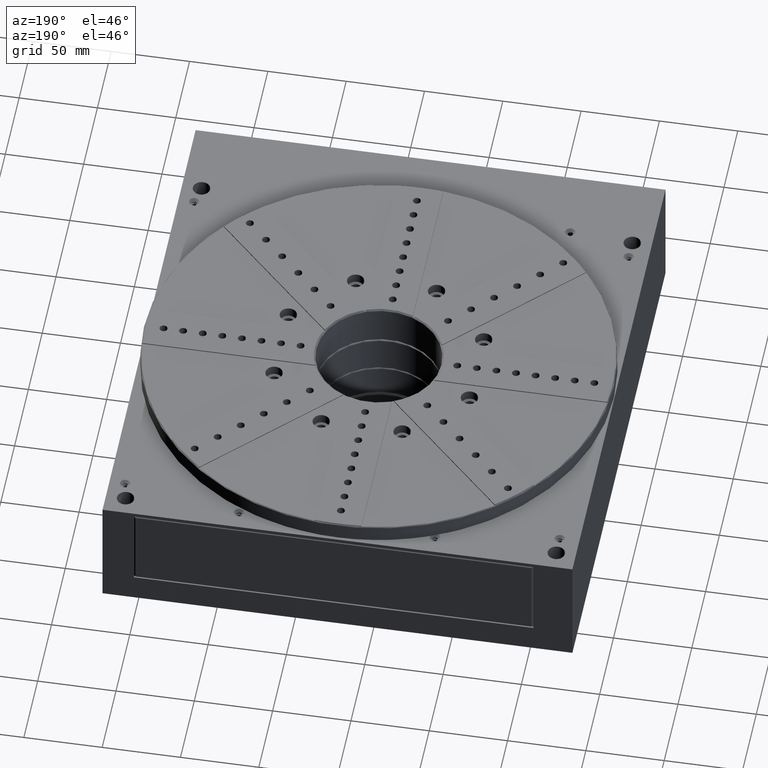
[diagram: clean part render]
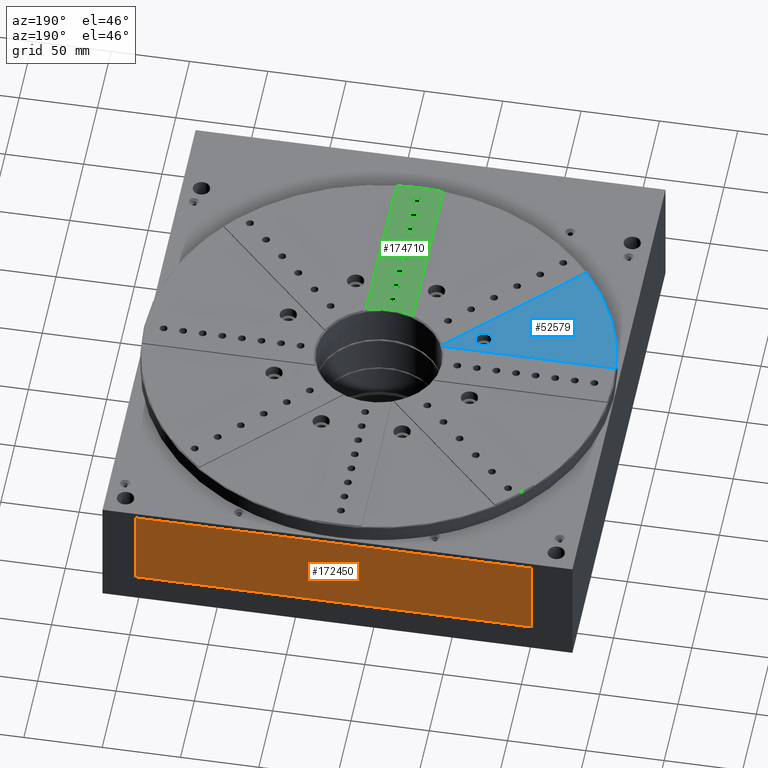
[diagram: same view with three faces highlighted in distinct colors, each labeled with its STEP entity id]
A machine part, auxiliary view with three faces highlighted in distinct colors.
Their STEP definitions:

[orange] entity #172450 — the highlighted planar face has unit normal (0, -1, 0).
#2256 = DIRECTION ( 'NONE',  ( 0.000000000000000000, 0.000000000000000000, 1.000000000000000000 ) ) ;
#4609 = CARTESIAN_POINT ( 'NONE',  ( 52.00181511733440232, 173.8558278231579948, 311.5000000000000000 ) ) ;
#8335 = VERTEX_POINT ( 'NONE', #66558 ) ;
#9319 = EDGE_LOOP ( 'NONE', ( #126367, #148507, #88373, #144078 ) ) ;
#9815 = CARTESIAN_POINT ( 'NONE',  ( 51.00181511733439521, 173.8558278231579948, 364.5000000000000000 ) ) ;
#12931 = CARTESIAN_POINT ( 'NONE',  ( 51.00181511733439521, 173.8558278231579948, 365.5000000000000000 ) ) ;
#15899 = VECTOR ( 'NONE', #149742, 1000.000000000000000 ) ;
#26726 = EDGE_CURVE ( 'NONE', #8335, #140305, #145521, .T. ) ;
#28691 = CARTESIAN_POINT ( 'NONE',  ( 52.00181511733440232, 173.8558278231579948, 364.5000000000000000 ) ) ;
#37724 = VERTEX_POINT ( 'NONE', #140795 ) ;
#37756 = VERTEX_POINT ( 'NONE', #9815 ) ;
#41208 = DIRECTION ( 'NONE',  ( 0.000000000000000000, 0.000000000000000000, -1.000000000000000000 ) ) ;
#46235 = PLANE ( 'NONE',  #80398 ) ;
#51621 = EDGE_CURVE ( 'NONE', #37756, #37724, #83630, .T. ) ;
#66558 = CARTESIAN_POINT ( 'NONE',  ( -201.9981848826655266, 173.8558278231579948, 311.5000000000000000 ) ) ;
#74535 = FACE_OUTER_BOUND ( 'NONE', #9319, .T. ) ;
#80398 = AXIS2_PLACEMENT_3D ( 'NONE', #132016, #117890, #104678 ) ;
#83630 = LINE ( 'NONE', #12931, #91315 ) ;
#87105 = CARTESIAN_POINT ( 'NONE',  ( -201.9981848826655266, 173.8558278231579948, 365.5000000000000000 ) ) ;
#88373 = ORIENTED_EDGE ( 'NONE', *, *, #160866, .T. ) ;
#91315 = VECTOR ( 'NONE', #41208, 1000.000000000000000 ) ;
#104678 = DIRECTION ( 'NONE',  ( 0.000000000000000000, 0.000000000000000000, -1.000000000000000000 ) ) ;
#108008 = VECTOR ( 'NONE', #2256, 1000.000000000000000 ) ;
#111752 = EDGE_CURVE ( 'NONE', #140305, #37756, #145534, .T. ) ;
#115371 = VECTOR ( 'NONE', #171964, 1000.000000000000000 ) ;
#117890 = DIRECTION ( 'NONE',  ( 1.224510688924803862E-16, -1.000000000000000000, 0.000000000000000000 ) ) ;
#126367 = ORIENTED_EDGE ( 'NONE', *, *, #111752, .T. ) ;
#132016 = CARTESIAN_POINT ( 'NONE',  ( 52.00181511733440232, 173.8558278231579948, 365.5000000000000000 ) ) ;
#136489 = LINE ( 'NONE', #4609, #15899 ) ;
#140305 = VERTEX_POINT ( 'NONE', #145107 ) ;
#140795 = CARTESIAN_POINT ( 'NONE',  ( 51.00181511733439521, 173.8558278231579948, 311.5000000000000000 ) ) ;
#144078 = ORIENTED_EDGE ( 'NONE', *, *, #26726, .T. ) ;
#145107 = CARTESIAN_POINT ( 'NONE',  ( -201.9981848826655266, 173.8558278231579948, 364.5000000000000000 ) ) ;
#145521 = LINE ( 'NONE', #87105, #108008 ) ;
#145534 = LINE ( 'NONE', #28691, #115371 ) ;
#148507 = ORIENTED_EDGE ( 'NONE', *, *, #51621, .T. ) ;
#149742 = DIRECTION ( 'NONE',  ( -1.000000000000000000, -1.224510688924803862E-16, 0.000000000000000000 ) ) ;
#160866 = EDGE_CURVE ( 'NONE', #37724, #8335, #136489, .T. ) ;
#171964 = DIRECTION ( 'NONE',  ( 1.000000000000000000, 1.224510688924803862E-16, 0.000000000000000000 ) ) ;
#172450 = ADVANCED_FACE ( 'NONE', ( #74535 ), #46235, .F. ) ;

[blue] entity #52579 — the highlighted planar face has unit normal (0, 0, 1).
#2129 = AXIS2_PLACEMENT_3D ( 'NONE', #32926, #90427, #18788 ) ;
#2835 = CARTESIAN_POINT ( 'NONE',  ( -115.2059849009554000, 7.861162898137220800, 381.0000000000000000 ) ) ;
#4015 = AXIS2_PLACEMENT_3D ( 'NONE', #5071, #33374, #5993 ) ;
#5071 = CARTESIAN_POINT ( 'NONE',  ( -77.99816140670421305, 23.85578295678970306, 381.0000000000000000 ) ) ;
#5993 = DIRECTION ( 'NONE',  ( 1.000000000000000000, 0.000000000000000000, 0.000000000000000000 ) ) ;
#7482 = EDGE_CURVE ( 'NONE', #57197, #56204, #153704, .T. ) ;
#18788 = DIRECTION ( 'NONE',  ( 1.000000000000000000, 0.000000000000000000, 0.000000000000000000 ) ) ;
#32926 = CARTESIAN_POINT ( 'NONE',  ( -77.99816140670421305, 23.85578295678970306, 381.0000000000000000 ) ) ;
#33374 = DIRECTION ( 'NONE',  ( 0.000000000000000000, 0.000000000000000000, 1.000000000000000000 ) ) ;
#35582 = AXIS2_PLACEMENT_3D ( 'NONE', #115285, #58720, #184159 ) ;
#36219 = CARTESIAN_POINT ( 'NONE',  ( -277.4348681584954761, 8.855782956789679972, 381.0000000000000000 ) ) ;
#44237 = CIRCLE ( 'NONE', #2129, 149.5000000000000000 ) ;
#44429 = DIRECTION ( 'NONE',  ( 1.000000000000000000, 0.000000000000000000, 0.000000000000000000 ) ) ;
#45298 = CARTESIAN_POINT ( 'NONE',  ( -115.6179700186576014, 8.855782956789701288, 381.0000000000000000 ) ) ;
#45937 = CARTESIAN_POINT ( 'NONE',  ( -193.7837771909989897, -70.71662939190609620, 381.0000000000000000 ) ) ;
#51457 = CIRCLE ( 'NONE', #114706, 40.50000000000000000 ) ;
#52579 = ADVANCED_FACE ( 'NONE', ( #173851, #121004 ), #93644, .T. ) ;
#55525 = ORIENTED_EDGE ( 'NONE', *, *, #83002, .F. ) ;
#56204 = VERTEX_POINT ( 'NONE', #45937 ) ;
#57197 = VERTEX_POINT ( 'NONE', #2835 ) ;
#58720 = DIRECTION ( 'NONE',  ( 0.000000000000000000, 0.000000000000000000, -1.000000000000000000 ) ) ;
#59662 = CIRCLE ( 'NONE', #35582, 5.500000000000005329 ) ;
#61828 = DIRECTION ( 'NONE',  ( 0.000000000000000000, 0.000000000000000000, 1.000000000000000000 ) ) ;
#63355 = ORIENTED_EDGE ( 'NONE', *, *, #7482, .F. ) ;
#70439 = EDGE_CURVE ( 'NONE', #70539, #169446, #59662, .T. ) ;
#70539 = VERTEX_POINT ( 'NONE', #175580 ) ;
#70641 = CARTESIAN_POINT ( 'NONE',  ( -226.7437495765724975, 8.855782956789690630, 381.0000000000000000 ) ) ;
#75945 = EDGE_LOOP ( 'NONE', ( #104214, #107457 ) ) ;
#80195 = DIRECTION ( 'NONE',  ( -0.7071067811865474617, -0.7071067811865474617, 0.000000000000000000 ) ) ;
#81861 = EDGE_LOOP ( 'NONE', ( #63355, #55525, #134153, #85824 ) ) ;
#83002 = EDGE_CURVE ( 'NONE', #154150, #57197, #51457, .T. ) ;
#85824 = ORIENTED_EDGE ( 'NONE', *, *, #92138, .F. ) ;
#89018 = VECTOR ( 'NONE', #121999, 1000.000000000000000 ) ;
#90427 = DIRECTION ( 'NONE',  ( 0.000000000000000000, 0.000000000000000000, -1.000000000000000000 ) ) ;
#92138 = EDGE_CURVE ( 'NONE', #56204, #148689, #44237, .T. ) ;
#93644 = PLANE ( 'NONE',  #4015 ) ;
#104214 = ORIENTED_EDGE ( 'NONE', *, *, #70439, .T. ) ;
#107457 = ORIENTED_EDGE ( 'NONE', *, *, #137301, .T. ) ;
#114706 = AXIS2_PLACEMENT_3D ( 'NONE', #178664, #61828, #44429 ) ;
#115285 = CARTESIAN_POINT ( 'NONE',  ( -140.3600298512160123, -1.975348727853919906, 381.0000000000000000 ) ) ;
#121004 = FACE_OUTER_BOUND ( 'NONE', #81861, .T. ) ;
#121999 = DIRECTION ( 'NONE',  ( 1.000000000000000000, 1.062790248176661800E-16, 0.000000000000000000 ) ) ;
#123493 = CARTESIAN_POINT ( 'NONE',  ( -140.3600298512160123, -1.975348727853919906, 381.0000000000000000 ) ) ;
#126271 = DIRECTION ( 'NONE',  ( 1.000000000000000000, 0.000000000000000000, 0.000000000000000000 ) ) ;
#134153 = ORIENTED_EDGE ( 'NONE', *, *, #182852, .F. ) ;
#136055 = CIRCLE ( 'NONE', #138998, 5.500000000000005329 ) ;
#137301 = EDGE_CURVE ( 'NONE', #169446, #70539, #136055, .T. ) ;
#138998 = AXIS2_PLACEMENT_3D ( 'NONE', #123493, #182826, #126271 ) ;
#148689 = VERTEX_POINT ( 'NONE', #70641 ) ;
#150274 = CARTESIAN_POINT ( 'NONE',  ( -145.8600298512160123, -1.975348727853915243, 381.0000000000000000 ) ) ;
#153704 = LINE ( 'NONE', #168762, #176214 ) ;
#154150 = VERTEX_POINT ( 'NONE', #45298 ) ;
#166243 = LINE ( 'NONE', #36219, #89018 ) ;
#168762 = CARTESIAN_POINT ( 'NONE',  ( -114.2113648423029986, 8.855782956789701288, 381.0000000000000000 ) ) ;
#169446 = VERTEX_POINT ( 'NONE', #150274 ) ;
#173851 = FACE_BOUND ( 'NONE', #75945, .T. ) ;
#175580 = CARTESIAN_POINT ( 'NONE',  ( -134.8600298512160123, -1.975348727853919906, 381.0000000000000000 ) ) ;
#176214 = VECTOR ( 'NONE', #80195, 1000.000000000000114 ) ;
#178664 = CARTESIAN_POINT ( 'NONE',  ( -77.99816140670421305, 23.85578295678970306, 381.0000000000000000 ) ) ;
#182826 = DIRECTION ( 'NONE',  ( 0.000000000000000000, 0.000000000000000000, -1.000000000000000000 ) ) ;
#182852 = EDGE_CURVE ( 'NONE', #148689, #154150, #166243, .T. ) ;
#184159 = DIRECTION ( 'NONE',  ( 1.000000000000000000, 0.000000000000000000, 0.000000000000000000 ) ) ;

[green] entity #174710 — the highlighted planar face has unit normal (0, 0, 1).
#113 = CARTESIAN_POINT ( 'NONE',  ( -80.49816140670409936, -76.14421704321028983, 381.5000000000000000 ) ) ;
#324 = DIRECTION ( 'NONE',  ( 0.000000000000000000, 0.000000000000000000, 1.000000000000000000 ) ) ;
#405 = EDGE_LOOP ( 'NONE', ( #113339, #110767 ) ) ;
#1407 = EDGE_CURVE ( 'NONE', #102642, #100602, #155083, .T. ) ;
#1997 = EDGE_CURVE ( 'NONE', #15534, #119022, #61883, .T. ) ;
#2068 = CARTESIAN_POINT ( 'NONE',  ( -92.99816140670421305, -124.3872607248617896, 381.5000000000000000 ) ) ;
#2215 = EDGE_LOOP ( 'NONE', ( #149476, #80712, #121069, #131163 ) ) ;
#4139 = ORIENTED_EDGE ( 'NONE', *, *, #178332, .F. ) ;
#4142 = CARTESIAN_POINT ( 'NONE',  ( -77.99816140670421305, -113.6442170432104035, 381.5000000000000000 ) ) ;
#6288 = VECTOR ( 'NONE', #88045, 1000.000000000000000 ) ;
#6620 = CIRCLE ( 'NONE', #48871, 2.500000000000002220 ) ;
#8371 = CIRCLE ( 'NONE', #113705, 2.500000000000002220 ) ;
#8430 = AXIS2_PLACEMENT_3D ( 'NONE', #12143, #158204, #28146 ) ;
#10402 = CIRCLE ( 'NONE', #112778, 2.500000000000002220 ) ;
#10877 = AXIS2_PLACEMENT_3D ( 'NONE', #53201, #110703, #138027 ) ;
#12143 = CARTESIAN_POINT ( 'NONE',  ( -77.99816140670421305, 23.85578295678970306, 381.5000000000000000 ) ) ;
#12383 = AXIS2_PLACEMENT_3D ( 'NONE', #25446, #97121, #36823 ) ;
#13076 = FACE_BOUND ( 'NONE', #164962, .T. ) ;
#13735 = DIRECTION ( 'NONE',  ( -4.251160992706529733E-17, -1.000000000000000000, 0.000000000000000000 ) ) ;
#14134 = ORIENTED_EDGE ( 'NONE', *, *, #36704, .F. ) ;
#15286 = DIRECTION ( 'NONE',  ( 0.000000000000000000, 0.000000000000000000, 1.000000000000000000 ) ) ;
#15534 = VERTEX_POINT ( 'NONE', #119491 ) ;
#16214 = DIRECTION ( 'NONE',  ( 0.000000000000000000, 0.000000000000000000, 1.000000000000000000 ) ) ;
#18872 = CARTESIAN_POINT ( 'NONE',  ( -80.49816140670421305, -113.6442170432104035, 381.5000000000000000 ) ) ;
#25312 = CARTESIAN_POINT ( 'NONE',  ( -77.99816140670409936, -76.14421704321028983, 381.5000000000000000 ) ) ;
#25446 = CARTESIAN_POINT ( 'NONE',  ( -77.99816140670421305, -101.1442170432103893, 381.5000000000000000 ) ) ;
#28146 = DIRECTION ( 'NONE',  ( 1.000000000000000000, 0.000000000000000000, 0.000000000000000000 ) ) ;
#28457 = CIRCLE ( 'NONE', #55478, 41.00000000000000000 ) ;
#28506 = DIRECTION ( 'NONE',  ( 0.000000000000000000, 0.000000000000000000, 1.000000000000000000 ) ) ;
#30355 = CARTESIAN_POINT ( 'NONE',  ( -77.99816140670409936, -51.14421704321030404, 381.5000000000000000 ) ) ;
#30552 = LINE ( 'NONE', #39333, #6288 ) ;
#32685 = CARTESIAN_POINT ( 'NONE',  ( -80.49816140670421305, -101.1442170432103893, 381.5000000000000000 ) ) ;
#33351 = VERTEX_POINT ( 'NONE', #154107 ) ;
#34840 = AXIS2_PLACEMENT_3D ( 'NONE', #4142, #124479, #165944 ) ;
#34982 = CARTESIAN_POINT ( 'NONE',  ( -80.49816140670409936, -26.14421704321030049, 381.5000000000000000 ) ) ;
#36704 = EDGE_CURVE ( 'NONE', #172236, #115090, #50529, .T. ) ;
#36823 = DIRECTION ( 'NONE',  ( 1.000000000000000000, 0.000000000000000000, 0.000000000000000000 ) ) ;
#37779 = VERTEX_POINT ( 'NONE', #80515 ) ;
#37816 = CARTESIAN_POINT ( 'NONE',  ( -92.99816140670421305, -14.30178509988819968, 381.5000000000000000 ) ) ;
#38548 = DIRECTION ( 'NONE',  ( 0.000000000000000000, 0.000000000000000000, 1.000000000000000000 ) ) ;
#39333 = CARTESIAN_POINT ( 'NONE',  ( -62.99816140670420594, -12.35742047880421879, 381.5000000000000000 ) ) ;
#40276 = EDGE_CURVE ( 'NONE', #173875, #140253, #105555, .T. ) ;
#41681 = CARTESIAN_POINT ( 'NONE',  ( -77.99816140670409936, -88.64421704321028983, 381.5000000000000000 ) ) ;
#42004 = LINE ( 'NONE', #173941, #137927 ) ;
#42736 = CARTESIAN_POINT ( 'NONE',  ( -77.99816140670409936, -26.14421704321030049, 381.5000000000000000 ) ) ;
#46637 = ORIENTED_EDGE ( 'NONE', *, *, #106831, .F. ) ;
#47007 = EDGE_CURVE ( 'NONE', #100602, #102642, #10402, .T. ) ;
#48871 = AXIS2_PLACEMENT_3D ( 'NONE', #135454, #178822, #121332 ) ;
#49786 = CIRCLE ( 'NONE', #182195, 2.500000000000002220 ) ;
#50529 = CIRCLE ( 'NONE', #152917, 2.500000000000002220 ) ;
#52019 = DIRECTION ( 'NONE',  ( 1.000000000000000000, 0.000000000000000000, 0.000000000000000000 ) ) ;
#52918 = DIRECTION ( 'NONE',  ( 0.000000000000000000, 0.000000000000000000, 1.000000000000000000 ) ) ;
#53201 = CARTESIAN_POINT ( 'NONE',  ( -77.99816140670421305, 23.85578295678970306, 381.5000000000000000 ) ) ;
#54972 = CARTESIAN_POINT ( 'NONE',  ( -75.49816140670421305, -26.14421704321030049, 381.5000000000000000 ) ) ;
#55478 = AXIS2_PLACEMENT_3D ( 'NONE', #103155, #116354, #130493 ) ;
#55481 = FACE_BOUND ( 'NONE', #151463, .T. ) ;
#58816 = EDGE_CURVE ( 'NONE', #160115, #76200, #159675, .T. ) ;
#60049 = EDGE_CURVE ( 'NONE', #37779, #125656, #30552, .T. ) ;
#60369 = CIRCLE ( 'NONE', #117557, 2.500000000000002220 ) ;
#61883 = CIRCLE ( 'NONE', #34840, 2.500000000000002220 ) ;
#62271 = CARTESIAN_POINT ( 'NONE',  ( -75.49816140670409936, -88.64421704321028983, 381.5000000000000000 ) ) ;
#62469 = EDGE_CURVE ( 'NONE', #106657, #80499, #60369, .T. ) ;
#63402 = CARTESIAN_POINT ( 'NONE',  ( -77.99816140670409936, -63.64421704321029694, 381.5000000000000000 ) ) ;
#63480 = ORIENTED_EDGE ( 'NONE', *, *, #77940, .F. ) ;
#63736 = EDGE_LOOP ( 'NONE', ( #169636, #14134 ) ) ;
#64416 = EDGE_LOOP ( 'NONE', ( #145412, #93856 ) ) ;
#65110 = CIRCLE ( 'NONE', #113249, 2.500000000000002220 ) ;
#66832 = ORIENTED_EDGE ( 'NONE', *, *, #47007, .F. ) ;
#67574 = CARTESIAN_POINT ( 'NONE',  ( -75.49816140670409936, -76.14421704321028983, 381.5000000000000000 ) ) ;
#69813 = EDGE_CURVE ( 'NONE', #168083, #92306, #42004, .T. ) ;
#71656 = CARTESIAN_POINT ( 'NONE',  ( -77.99816140670421305, -113.6442170432104035, 381.5000000000000000 ) ) ;
#73525 = DIRECTION ( 'NONE',  ( 0.000000000000000000, 0.000000000000000000, 1.000000000000000000 ) ) ;
#76012 = CARTESIAN_POINT ( 'NONE',  ( -77.99816140670409936, -63.64421704321029694, 381.5000000000000000 ) ) ;
#76200 = VERTEX_POINT ( 'NONE', #54972 ) ;
#76333 = DIRECTION ( 'NONE',  ( 1.000000000000000000, 0.000000000000000000, 0.000000000000000000 ) ) ;
#77463 = EDGE_CURVE ( 'NONE', #115090, #172236, #118030, .T. ) ;
#77651 = ORIENTED_EDGE ( 'NONE', *, *, #124969, .F. ) ;
#77940 = EDGE_CURVE ( 'NONE', #172388, #100135, #6620, .T. ) ;
#80499 = VERTEX_POINT ( 'NONE', #106758 ) ;
#80515 = CARTESIAN_POINT ( 'NONE',  ( -62.99816140670420594, -124.3872607248617896, 381.5000000000000000 ) ) ;
#80712 = ORIENTED_EDGE ( 'NONE', *, *, #69813, .T. ) ;
#81734 = CIRCLE ( 'NONE', #181062, 2.500000000000002220 ) ;
#82725 = CARTESIAN_POINT ( 'NONE',  ( -62.99816140670420594, -14.30178509988819968, 381.5000000000000000 ) ) ;
#83198 = ORIENTED_EDGE ( 'NONE', *, *, #62469, .F. ) ;
#85044 = DIRECTION ( 'NONE',  ( 1.000000000000000000, 0.000000000000000000, 0.000000000000000000 ) ) ;
#86197 = AXIS2_PLACEMENT_3D ( 'NONE', #41681, #15286, #85044 ) ;
#86746 = DIRECTION ( 'NONE',  ( 0.000000000000000000, 0.000000000000000000, 1.000000000000000000 ) ) ;
#86890 = EDGE_CURVE ( 'NONE', #92306, #37779, #122308, .T. ) ;
#86983 = CIRCLE ( 'NONE', #105012, 2.500000000000002220 ) ;
#87849 = DIRECTION ( 'NONE',  ( 1.000000000000000000, 0.000000000000000000, 0.000000000000000000 ) ) ;
#88045 = DIRECTION ( 'NONE',  ( -2.763254645259240043E-16, 1.000000000000000000, 0.000000000000000000 ) ) ;
#90601 = CIRCLE ( 'NONE', #12383, 2.500000000000002220 ) ;
#91439 = CARTESIAN_POINT ( 'NONE',  ( -80.49816140670409936, -63.64421704321029694, 381.5000000000000000 ) ) ;
#91899 = DIRECTION ( 'NONE',  ( 0.000000000000000000, 0.000000000000000000, 1.000000000000000000 ) ) ;
#92248 = EDGE_LOOP ( 'NONE', ( #46637, #102195 ) ) ;
#92306 = VERTEX_POINT ( 'NONE', #2068 ) ;
#93856 = ORIENTED_EDGE ( 'NONE', *, *, #168343, .F. ) ;
#95383 = DIRECTION ( 'NONE',  ( 1.000000000000000000, 0.000000000000000000, 0.000000000000000000 ) ) ;
#96476 = EDGE_CURVE ( 'NONE', #100135, #172388, #143372, .T. ) ;
#97121 = DIRECTION ( 'NONE',  ( 0.000000000000000000, 0.000000000000000000, 1.000000000000000000 ) ) ;
#100135 = VERTEX_POINT ( 'NONE', #120375 ) ;
#100602 = VERTEX_POINT ( 'NONE', #113315 ) ;
#102195 = ORIENTED_EDGE ( 'NONE', *, *, #145074, .F. ) ;
#102642 = VERTEX_POINT ( 'NONE', #91439 ) ;
#103155 = CARTESIAN_POINT ( 'NONE',  ( -77.99816140670421305, 23.85578295678970306, 381.5000000000000000 ) ) ;
#103971 = AXIS2_PLACEMENT_3D ( 'NONE', #76012, #105216, #161776 ) ;
#105012 = AXIS2_PLACEMENT_3D ( 'NONE', #42736, #324, #113422 ) ;
#105092 = CARTESIAN_POINT ( 'NONE',  ( -77.99816140670409936, -26.14421704321030049, 381.5000000000000000 ) ) ;
#105216 = DIRECTION ( 'NONE',  ( 0.000000000000000000, 0.000000000000000000, 1.000000000000000000 ) ) ;
#105555 = CIRCLE ( 'NONE', #144559, 2.500000000000002220 ) ;
#106657 = VERTEX_POINT ( 'NONE', #32685 ) ;
#106758 = CARTESIAN_POINT ( 'NONE',  ( -75.49816140670421305, -101.1442170432103893, 381.5000000000000000 ) ) ;
#106831 = EDGE_CURVE ( 'NONE', #33351, #126711, #81734, .T. ) ;
#109489 = CARTESIAN_POINT ( 'NONE',  ( -77.99816140670409936, -76.14421704321028983, 381.5000000000000000 ) ) ;
#110703 = DIRECTION ( 'NONE',  ( 0.000000000000000000, 0.000000000000000000, 1.000000000000000000 ) ) ;
#110767 = ORIENTED_EDGE ( 'NONE', *, *, #58816, .F. ) ;
#111079 = EDGE_LOOP ( 'NONE', ( #181967, #77651 ) ) ;
#112778 = AXIS2_PLACEMENT_3D ( 'NONE', #63402, #181157, #52019 ) ;
#112976 = PLANE ( 'NONE',  #8430 ) ;
#113249 = AXIS2_PLACEMENT_3D ( 'NONE', #134745, #73525, #76333 ) ;
#113315 = CARTESIAN_POINT ( 'NONE',  ( -75.49816140670421305, -63.64421704321029694, 381.5000000000000000 ) ) ;
#113339 = ORIENTED_EDGE ( 'NONE', *, *, #153355, .F. ) ;
#113422 = DIRECTION ( 'NONE',  ( 1.000000000000000000, 0.000000000000000000, 0.000000000000000000 ) ) ;
#113705 = AXIS2_PLACEMENT_3D ( 'NONE', #71656, #86746, #143291 ) ;
#114413 = EDGE_LOOP ( 'NONE', ( #63480, #136450 ) ) ;
#115090 = VERTEX_POINT ( 'NONE', #67574 ) ;
#116354 = DIRECTION ( 'NONE',  ( 0.000000000000000000, 0.000000000000000000, -1.000000000000000000 ) ) ;
#117557 = AXIS2_PLACEMENT_3D ( 'NONE', #135057, #147358, #119075 ) ;
#118030 = CIRCLE ( 'NONE', #145076, 2.500000000000002220 ) ;
#119022 = VERTEX_POINT ( 'NONE', #18872 ) ;
#119075 = DIRECTION ( 'NONE',  ( 1.000000000000000000, 0.000000000000000000, 0.000000000000000000 ) ) ;
#119491 = CARTESIAN_POINT ( 'NONE',  ( -75.49816140670421305, -113.6442170432104035, 381.5000000000000000 ) ) ;
#120165 = DIRECTION ( 'NONE',  ( 1.000000000000000000, 0.000000000000000000, 0.000000000000000000 ) ) ;
#120375 = CARTESIAN_POINT ( 'NONE',  ( -80.49816140670409936, -88.64421704321028983, 381.5000000000000000 ) ) ;
#121069 = ORIENTED_EDGE ( 'NONE', *, *, #86890, .T. ) ;
#121332 = DIRECTION ( 'NONE',  ( 1.000000000000000000, 0.000000000000000000, 0.000000000000000000 ) ) ;
#122308 = CIRCLE ( 'NONE', #10877, 149.0000000000000000 ) ;
#124479 = DIRECTION ( 'NONE',  ( 0.000000000000000000, 0.000000000000000000, 1.000000000000000000 ) ) ;
#124933 = DIRECTION ( 'NONE',  ( 1.000000000000000000, 0.000000000000000000, 0.000000000000000000 ) ) ;
#124969 = EDGE_CURVE ( 'NONE', #119022, #15534, #8371, .T. ) ;
#125656 = VERTEX_POINT ( 'NONE', #82725 ) ;
#126711 = VERTEX_POINT ( 'NONE', #182917 ) ;
#128069 = FACE_BOUND ( 'NONE', #63736, .T. ) ;
#130493 = DIRECTION ( 'NONE',  ( 1.000000000000000000, 0.000000000000000000, 0.000000000000000000 ) ) ;
#131163 = ORIENTED_EDGE ( 'NONE', *, *, #60049, .T. ) ;
#134745 = CARTESIAN_POINT ( 'NONE',  ( -77.99816140670409936, -51.14421704321030404, 381.5000000000000000 ) ) ;
#135057 = CARTESIAN_POINT ( 'NONE',  ( -77.99816140670421305, -101.1442170432103893, 381.5000000000000000 ) ) ;
#135454 = CARTESIAN_POINT ( 'NONE',  ( -77.99816140670409936, -88.64421704321028983, 381.5000000000000000 ) ) ;
#136450 = ORIENTED_EDGE ( 'NONE', *, *, #96476, .F. ) ;
#137927 = VECTOR ( 'NONE', #13735, 1000.000000000000000 ) ;
#138027 = DIRECTION ( 'NONE',  ( 1.000000000000000000, 0.000000000000000000, 0.000000000000000000 ) ) ;
#140253 = VERTEX_POINT ( 'NONE', #144174 ) ;
#140330 = FACE_BOUND ( 'NONE', #64416, .T. ) ;
#140886 = DIRECTION ( 'NONE',  ( 0.000000000000000000, 0.000000000000000000, 1.000000000000000000 ) ) ;
#141255 = FACE_BOUND ( 'NONE', #114413, .T. ) ;
#143291 = DIRECTION ( 'NONE',  ( 1.000000000000000000, 0.000000000000000000, 0.000000000000000000 ) ) ;
#143372 = CIRCLE ( 'NONE', #86197, 2.500000000000002220 ) ;
#144059 = FACE_BOUND ( 'NONE', #92248, .T. ) ;
#144174 = CARTESIAN_POINT ( 'NONE',  ( -80.49816140670409936, -51.14421704321030404, 381.5000000000000000 ) ) ;
#144559 = AXIS2_PLACEMENT_3D ( 'NONE', #30355, #16214, #87849 ) ;
#145074 = EDGE_CURVE ( 'NONE', #126711, #33351, #49786, .T. ) ;
#145076 = AXIS2_PLACEMENT_3D ( 'NONE', #25312, #38548, #170449 ) ;
#145412 = ORIENTED_EDGE ( 'NONE', *, *, #40276, .F. ) ;
#147358 = DIRECTION ( 'NONE',  ( 0.000000000000000000, 0.000000000000000000, 1.000000000000000000 ) ) ;
#149476 = ORIENTED_EDGE ( 'NONE', *, *, #179085, .T. ) ;
#151463 = EDGE_LOOP ( 'NONE', ( #66832, #171133 ) ) ;
#152917 = AXIS2_PLACEMENT_3D ( 'NONE', #109489, #52918, #95383 ) ;
#153182 = CARTESIAN_POINT ( 'NONE',  ( -77.99816140670409936, -38.64421704321030404, 381.5000000000000000 ) ) ;
#153355 = EDGE_CURVE ( 'NONE', #76200, #160115, #86983, .T. ) ;
#153622 = AXIS2_PLACEMENT_3D ( 'NONE', #105092, #91899, #120165 ) ;
#154107 = CARTESIAN_POINT ( 'NONE',  ( -75.49816140670421305, -38.64421704321030404, 381.5000000000000000 ) ) ;
#155083 = CIRCLE ( 'NONE', #103971, 2.500000000000002220 ) ;
#157631 = CARTESIAN_POINT ( 'NONE',  ( -77.99816140670409936, -38.64421704321030404, 381.5000000000000000 ) ) ;
#158204 = DIRECTION ( 'NONE',  ( 0.000000000000000000, 0.000000000000000000, 1.000000000000000000 ) ) ;
#159675 = CIRCLE ( 'NONE', #153622, 2.500000000000002220 ) ;
#160115 = VERTEX_POINT ( 'NONE', #34982 ) ;
#161776 = DIRECTION ( 'NONE',  ( 1.000000000000000000, 0.000000000000000000, 0.000000000000000000 ) ) ;
#164962 = EDGE_LOOP ( 'NONE', ( #4139, #83198 ) ) ;
#165944 = DIRECTION ( 'NONE',  ( 1.000000000000000000, 0.000000000000000000, 0.000000000000000000 ) ) ;
#168083 = VERTEX_POINT ( 'NONE', #37816 ) ;
#168343 = EDGE_CURVE ( 'NONE', #140253, #173875, #65110, .T. ) ;
#168616 = FACE_BOUND ( 'NONE', #111079, .T. ) ;
#169636 = ORIENTED_EDGE ( 'NONE', *, *, #77463, .F. ) ;
#170449 = DIRECTION ( 'NONE',  ( 1.000000000000000000, 0.000000000000000000, 0.000000000000000000 ) ) ;
#171133 = ORIENTED_EDGE ( 'NONE', *, *, #1407, .F. ) ;
#172236 = VERTEX_POINT ( 'NONE', #113 ) ;
#172344 = FACE_OUTER_BOUND ( 'NONE', #2215, .T. ) ;
#172388 = VERTEX_POINT ( 'NONE', #62271 ) ;
#173875 = VERTEX_POINT ( 'NONE', #174654 ) ;
#173941 = CARTESIAN_POINT ( 'NONE',  ( -92.99816140670421305, -12.35742047880429872, 381.5000000000000000 ) ) ;
#174654 = CARTESIAN_POINT ( 'NONE',  ( -75.49816140670421305, -51.14421704321030404, 381.5000000000000000 ) ) ;
#174710 = ADVANCED_FACE ( 'NONE', ( #168616, #13076, #141255, #128069, #55481, #140330, #144059, #186504, #172344 ), #112976, .T. ) ;
#178332 = EDGE_CURVE ( 'NONE', #80499, #106657, #90601, .T. ) ;
#178822 = DIRECTION ( 'NONE',  ( 0.000000000000000000, 0.000000000000000000, 1.000000000000000000 ) ) ;
#179085 = EDGE_CURVE ( 'NONE', #125656, #168083, #28457, .T. ) ;
#181062 = AXIS2_PLACEMENT_3D ( 'NONE', #157631, #28506, #124933 ) ;
#181157 = DIRECTION ( 'NONE',  ( 0.000000000000000000, 0.000000000000000000, 1.000000000000000000 ) ) ;
#181967 = ORIENTED_EDGE ( 'NONE', *, *, #1997, .F. ) ;
#182195 = AXIS2_PLACEMENT_3D ( 'NONE', #153182, #140886, #184271 ) ;
#182917 = CARTESIAN_POINT ( 'NONE',  ( -80.49816140670409936, -38.64421704321030404, 381.5000000000000000 ) ) ;
#184271 = DIRECTION ( 'NONE',  ( 1.000000000000000000, 0.000000000000000000, 0.000000000000000000 ) ) ;
#186504 = FACE_BOUND ( 'NONE', #405, .T. ) ;